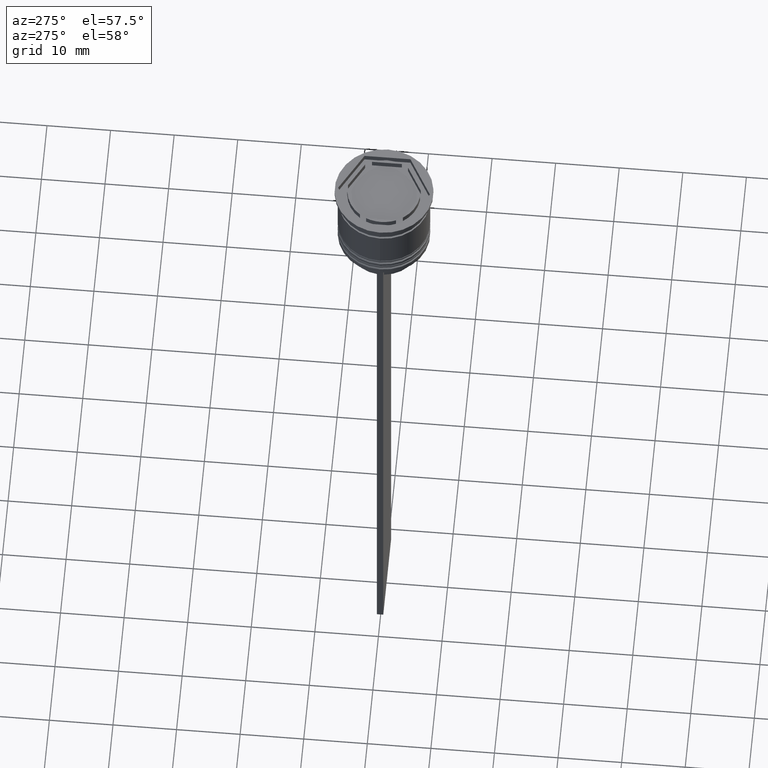
[diagram: clean part render]
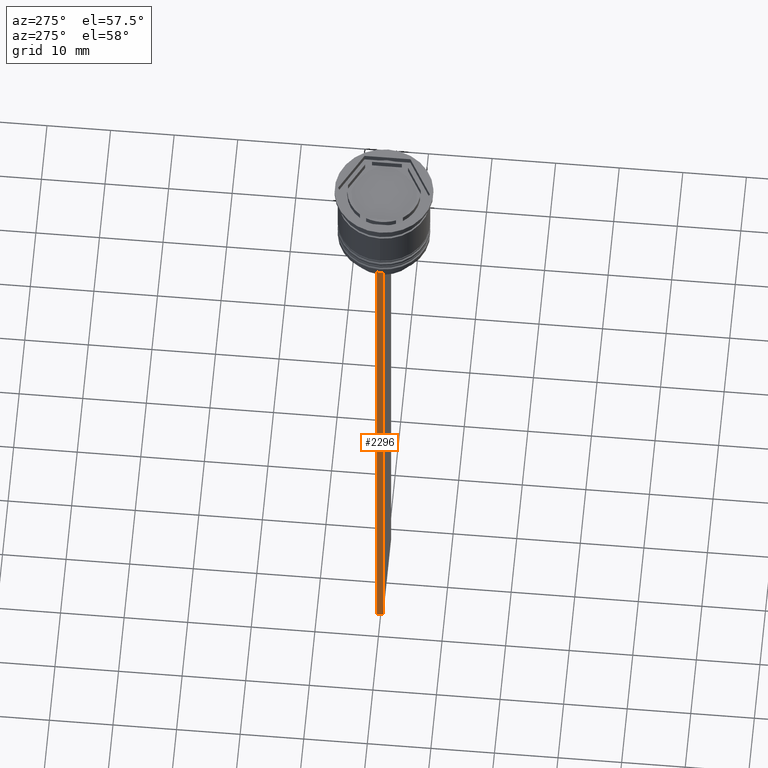
[diagram: same view with one face highlighted and labeled with its STEP entity id]
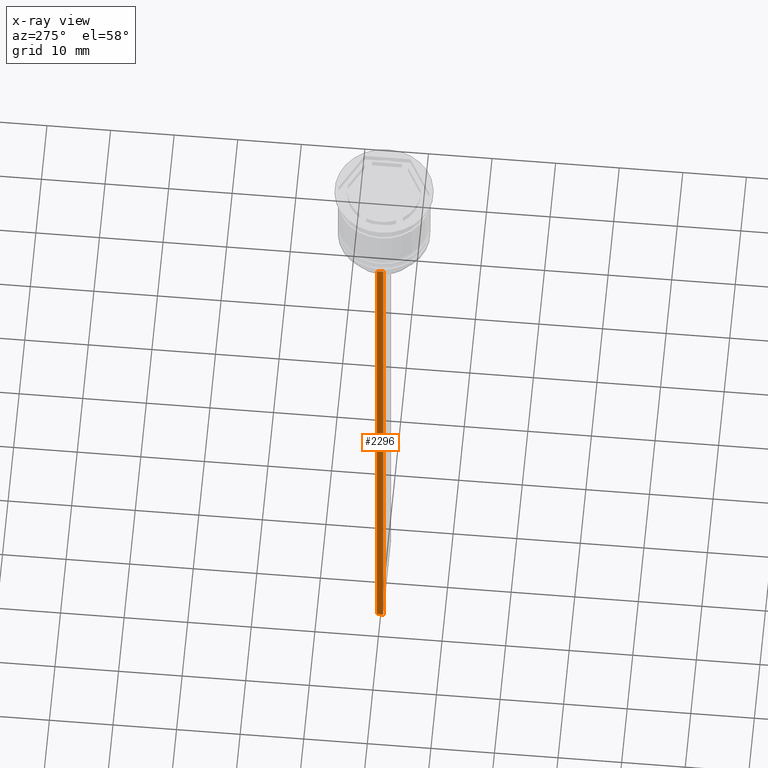
[diagram: x-ray of the same camera — body ghosted, the highlighted face saturated]
A machine part, auxiliary view. The second image highlights one B-rep face of the part: STEP entity #2296.
The next image is the same camera in x-ray: the body ghosted, the highlighted face saturated — about 0% of this face is hidden behind the body in this view.
In plain terms, the highlighted planar face has unit normal (-1, 0, 0).
Its self-contained STEP definition (entity closure, byte-faithful):
#5 = CARTESIAN_POINT ( 'NONE',  ( -6.999999999999987566, -0.5000000000000022204, -12.50000000000000000 ) ) ;
#14 = DIRECTION ( 'NONE',  ( 0.000000000000000000, 0.000000000000000000, -1.000000000000000000 ) ) ;
#43 = EDGE_CURVE ( 'NONE', #1508, #1152, #236, .T. ) ;
#61 = CARTESIAN_POINT ( 'NONE',  ( -6.999999999999987566, -0.5000000000000022204, -12.50000000000000000 ) ) ;
#236 = LINE ( 'NONE', #61, #1284 ) ;
#268 = DIRECTION ( 'NONE',  ( -1.000000000000000000, 0.000000000000000000, 0.000000000000000000 ) ) ;
#280 = EDGE_CURVE ( 'NONE', #837, #433, #854, .T. ) ;
#330 = DIRECTION ( 'NONE',  ( 0.000000000000000000, 1.000000000000000000, 0.000000000000000000 ) ) ;
#405 = CARTESIAN_POINT ( 'NONE',  ( -6.999999999999987566, 0.4999999999999980571, -12.50000000000000000 ) ) ;
#433 = VERTEX_POINT ( 'NONE', #1524 ) ;
#609 = LINE ( 'NONE', #1505, #2260 ) ;
#684 = ORIENTED_EDGE ( 'NONE', *, *, #816, .T. ) ;
#816 = EDGE_CURVE ( 'NONE', #1508, #433, #609, .T. ) ;
#837 = VERTEX_POINT ( 'NONE', #1345 ) ;
#854 = LINE ( 'NONE', #1049, #1132 ) ;
#1049 = CARTESIAN_POINT ( 'NONE',  ( -6.999999999999987566, -0.5000000000000022204, -112.5000000000000000 ) ) ;
#1062 = EDGE_LOOP ( 'NONE', ( #2287, #684, #1878, #1598 ) ) ;
#1132 = VECTOR ( 'NONE', #330, 1000.000000000000000 ) ;
#1150 = EDGE_CURVE ( 'NONE', #1152, #837, #1201, .T. ) ;
#1152 = VERTEX_POINT ( 'NONE', #5 ) ;
#1165 = DIRECTION ( 'NONE',  ( 0.000000000000000000, 0.000000000000000000, -1.000000000000000000 ) ) ;
#1201 = LINE ( 'NONE', #1278, #2342 ) ;
#1278 = CARTESIAN_POINT ( 'NONE',  ( -6.999999999999987566, -0.5000000000000022204, 1.535668847618198329 ) ) ;
#1284 = VECTOR ( 'NONE', #1701, 1000.000000000000000 ) ;
#1345 = CARTESIAN_POINT ( 'NONE',  ( -6.999999999999987566, -0.5000000000000022204, -112.5000000000000000 ) ) ;
#1505 = CARTESIAN_POINT ( 'NONE',  ( -6.999999999999987566, 0.4999999999999978351, 1.535668847618198329 ) ) ;
#1508 = VERTEX_POINT ( 'NONE', #405 ) ;
#1509 = FACE_OUTER_BOUND ( 'NONE', #1062, .T. ) ;
#1524 = CARTESIAN_POINT ( 'NONE',  ( -6.999999999999987566, 0.4999999999999978351, -112.5000000000000000 ) ) ;
#1598 = ORIENTED_EDGE ( 'NONE', *, *, #1150, .F. ) ;
#1701 = DIRECTION ( 'NONE',  ( 0.000000000000000000, -1.000000000000000000, 0.000000000000000000 ) ) ;
#1878 = ORIENTED_EDGE ( 'NONE', *, *, #280, .F. ) ;
#1892 = PLANE ( 'NONE',  #1969 ) ;
#1969 = AXIS2_PLACEMENT_3D ( 'NONE', #2226, #268, #2046 ) ;
#2046 = DIRECTION ( 'NONE',  ( 0.000000000000000000, 0.000000000000000000, 1.000000000000000000 ) ) ;
#2226 = CARTESIAN_POINT ( 'NONE',  ( -6.999999999999987566, -0.5000000000000022204, 1.535668847618198329 ) ) ;
#2260 = VECTOR ( 'NONE', #1165, 1000.000000000000000 ) ;
#2287 = ORIENTED_EDGE ( 'NONE', *, *, #43, .F. ) ;
#2296 = ADVANCED_FACE ( 'NONE', ( #1509 ), #1892, .T. ) ;
#2342 = VECTOR ( 'NONE', #14, 1000.000000000000000 ) ;